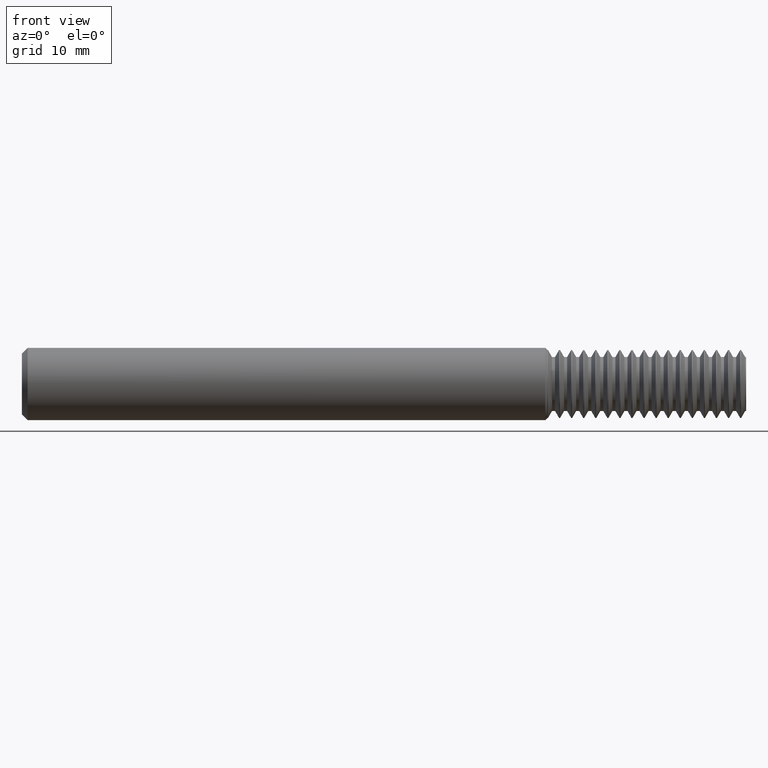
[diagram: clean part render]
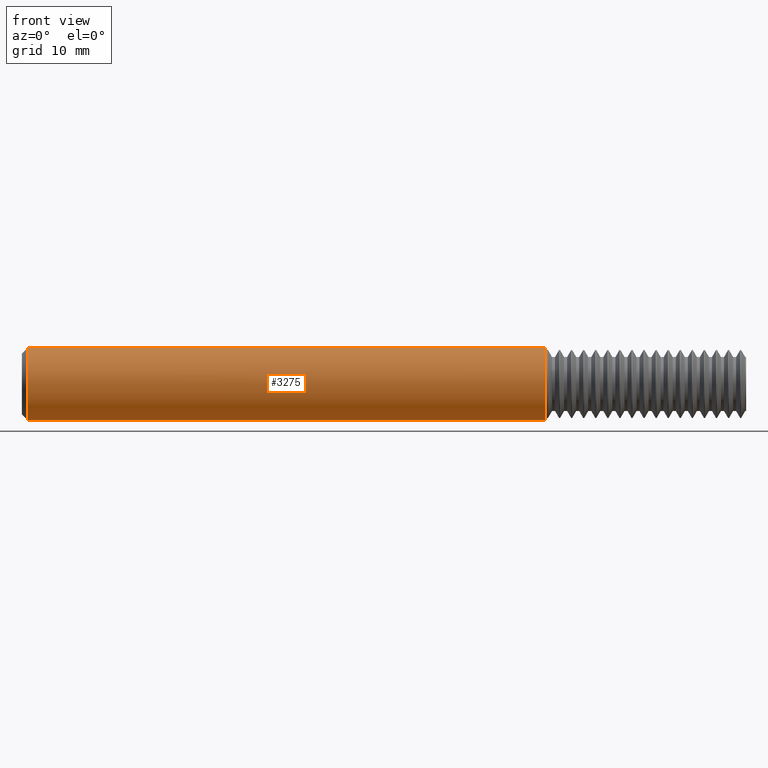
[diagram: same view with one face highlighted and labeled with its STEP entity id]
A machine part, front view. The second image highlights one B-rep face of the part: STEP entity #3275.
In plain terms, the highlighted cylindrical surface (edge-blend (fillet) strip) has radius 3.1712 mm, axis along (-1, -0, -0).
Its self-contained STEP definition (entity closure, byte-faithful):
#221 = CARTESIAN_POINT ( 'NONE',  ( 0.02000000000000005940, 1.528971528735470422E-17, 0.1248500000000000026 ) ) ;
#253 = DIRECTION ( 'NONE',  ( 0.000000000000000000, 0.000000000000000000, 1.000000000000000000 ) ) ;
#326 = CARTESIAN_POINT ( 'NONE',  ( 0.000000000000000000, 1.528971528735470422E-17, -0.1248500000000000026 ) ) ;
#386 = DIRECTION ( 'NONE',  ( 1.000000000000000000, 0.000000000000000000, 0.000000000000000000 ) ) ;
#523 = DIRECTION ( 'NONE',  ( -1.000000000000000000, -0.000000000000000000, -0.000000000000000000 ) ) ;
#592 = DIRECTION ( 'NONE',  ( -1.000000000000000000, -0.000000000000000000, -0.000000000000000000 ) ) ;
#610 = CARTESIAN_POINT ( 'NONE',  ( 0.000000000000000000, 0.000000000000000000, 0.000000000000000000 ) ) ;
#979 = EDGE_LOOP ( 'NONE', ( #3031, #1094, #1892, #1274 ) ) ;
#1037 = LINE ( 'NONE', #3591, #1243 ) ;
#1094 = ORIENTED_EDGE ( 'NONE', *, *, #3545, .T. ) ;
#1184 = VERTEX_POINT ( 'NONE', #2283 ) ;
#1243 = VECTOR ( 'NONE', #523, 39.37007874015748143 ) ;
#1274 = ORIENTED_EDGE ( 'NONE', *, *, #3370, .T. ) ;
#1550 = CARTESIAN_POINT ( 'NONE',  ( 1.806650000000000311, 0.000000000000000000, 0.1248500000000000026 ) ) ;
#1752 = DIRECTION ( 'NONE',  ( -1.000000000000000000, -0.000000000000000000, -0.000000000000000000 ) ) ;
#1880 = VERTEX_POINT ( 'NONE', #221 ) ;
#1892 = ORIENTED_EDGE ( 'NONE', *, *, #2735, .T. ) ;
#1987 = CARTESIAN_POINT ( 'NONE',  ( 0.02000000000000005940, 0.000000000000000000, 0.000000000000000000 ) ) ;
#2029 = LINE ( 'NONE', #326, #3557 ) ;
#2151 = VERTEX_POINT ( 'NONE', #1550 ) ;
#2180 = CARTESIAN_POINT ( 'NONE',  ( 1.806650000000000311, 0.000000000000000000, 0.000000000000000000 ) ) ;
#2283 = CARTESIAN_POINT ( 'NONE',  ( 1.806650000000000311, 1.528971528735470422E-17, -0.1248500000000000026 ) ) ;
#2364 = AXIS2_PLACEMENT_3D ( 'NONE', #1987, #386, #3427 ) ;
#2391 = VERTEX_POINT ( 'NONE', #2764 ) ;
#2556 = EDGE_CURVE ( 'NONE', #1184, #2391, #2029, .T. ) ;
#2559 = DIRECTION ( 'NONE',  ( 0.000000000000000000, 0.000000000000000000, 1.000000000000000000 ) ) ;
#2598 = AXIS2_PLACEMENT_3D ( 'NONE', #610, #592, #2559 ) ;
#2613 = FACE_OUTER_BOUND ( 'NONE', #979, .T. ) ;
#2734 = CIRCLE ( 'NONE', #3450, 0.1248500000000000026 ) ;
#2735 = EDGE_CURVE ( 'NONE', #2151, #1880, #1037, .T. ) ;
#2764 = CARTESIAN_POINT ( 'NONE',  ( 0.02000000000000005940, 0.000000000000000000, -0.1248500000000000026 ) ) ;
#3031 = ORIENTED_EDGE ( 'NONE', *, *, #2556, .F. ) ;
#3275 = ADVANCED_FACE ( 'NONE', ( #2613 ), #3444, .T. ) ;
#3346 = DIRECTION ( 'NONE',  ( -1.000000000000000000, -0.000000000000000000, -0.000000000000000000 ) ) ;
#3368 = CIRCLE ( 'NONE', #2364, 0.1248500000000000026 ) ;
#3370 = EDGE_CURVE ( 'NONE', #1880, #2391, #3368, .T. ) ;
#3427 = DIRECTION ( 'NONE',  ( 0.000000000000000000, 0.000000000000000000, -1.000000000000000000 ) ) ;
#3444 = CYLINDRICAL_SURFACE ( 'NONE', #2598, 0.1248500000000000026 ) ;
#3450 = AXIS2_PLACEMENT_3D ( 'NONE', #2180, #3346, #253 ) ;
#3545 = EDGE_CURVE ( 'NONE', #1184, #2151, #2734, .T. ) ;
#3557 = VECTOR ( 'NONE', #1752, 39.37007874015748143 ) ;
#3591 = CARTESIAN_POINT ( 'NONE',  ( 0.000000000000000000, 0.000000000000000000, 0.1248500000000000026 ) ) ;